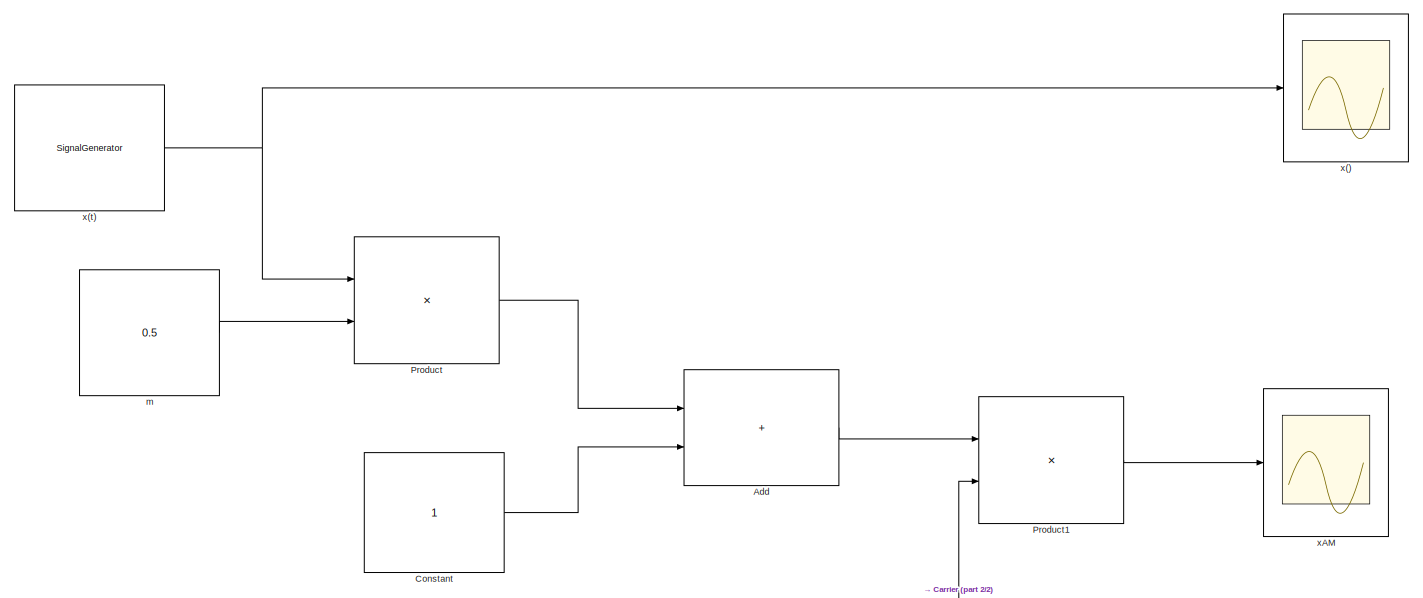
[diagram: root canvas - part 1/2, full width, top band]
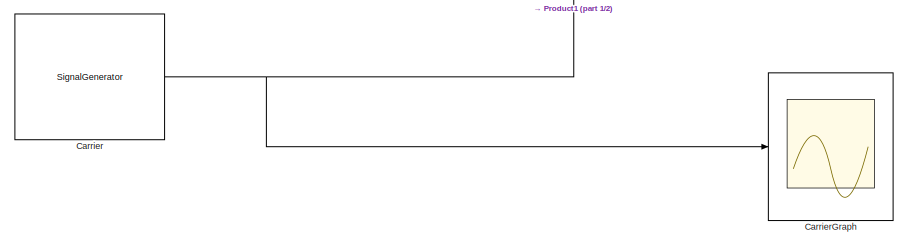
[diagram: root canvas - part 2/2, bottom center region]
MODEL slx_f3eb2e9affd4
KIND model
CONFIG AbsTol = auto
CONFIG EnableMultiTasking = off
CONFIG FixedStep = auto
CONFIG MaxStep = auto
CONFIG MinStep = auto
CONFIG RelTol = 1e-3
CONFIG SampleTimeConstraint = Unconstrained
CONFIG SolverName = VariableStepAuto
CONFIG StartTime = 0.0
CONFIG StopTime = 2/3400
BLOCK [SignalGenerator]  Carrier
  Amplitude = 10
  Frequency = 15*10000
BLOCK [Sum] Add
  IconShape = rectangular
BLOCK [Scope] CarrierGraph
  Floating = off
  NumInputPorts = 1
  ScopeSpecificationString = Simulink.scopes.TimeScopeBlockCfg('CurrentConfiguration', extmgr.ConfigurationSet(extmgr.Configuration('Core','General UI',true),extmgr.Configuration('Core','Source UI',true),extmgr.Configuration('Sources','WiredSimulink',true,'DataLoggingVariableName','ScopeData2'),extmgr.Configuration('Visuals','Time Domain',true,'SerializedDisplays',{struct('MinYLimReal','-12.49427','MaxYLimReal','12.45197','YL...<+1492ch>
BLOCK [Constant] Constant
BLOCK [Product] Product
BLOCK [Product] Product1
BLOCK [Constant] m
  Value = 0.5
BLOCK [Scope] x()
  Floating = off
  NumInputPorts = 1
  ScopeSpecificationString = Simulink.scopes.TimeScopeBlockCfg('CurrentConfiguration', extmgr.ConfigurationSet(extmgr.Configuration('Core','General UI',true),extmgr.Configuration('Core','Source UI',true),extmgr.Configuration('Sources','WiredSimulink',true),extmgr.Configuration('Visuals','Time Domain',true,'SerializedDisplays',{struct('MinYLimReal','-2.49996','MaxYLimReal','2.49999','YLabelReal','','MinYLimMag','0.00000','MaxY...<+1443ch>
BLOCK [SignalGenerator] x(t)
  Amplitude = 2
  Frequency = 5000
BLOCK [Scope] xAM
  Floating = off
  NumInputPorts = 1
  ScopeSpecificationString = Simulink.scopes.TimeScopeBlockCfg('CurrentConfiguration', extmgr.ConfigurationSet(extmgr.Configuration('Core','General UI',true),extmgr.Configuration('Core','Source UI',true),extmgr.Configuration('Sources','WiredSimulink',true,'DataLoggingVariableName','ScopeData1'),extmgr.Configuration('Visuals','Time Domain',true,'SerializedDisplays',{struct('MinYLimReal','-24.61096','MaxYLimReal','22.84572','YL...<+1492ch>
NET  Carrier:1 -> CarrierGraph:1, Product1:2
LINE Add:1 -> Product1:1
LINE Constant:1 -> Add:2
LINE Product1:1 -> xAM:1
LINE Product:1 -> Add:1
LINE m:1 -> Product:2
NET x(t):1 -> Product:1, x():1
note: NET lines group one-source signal fan-out (src -> all destinations, sorted); 1:1 wires keep LINE
